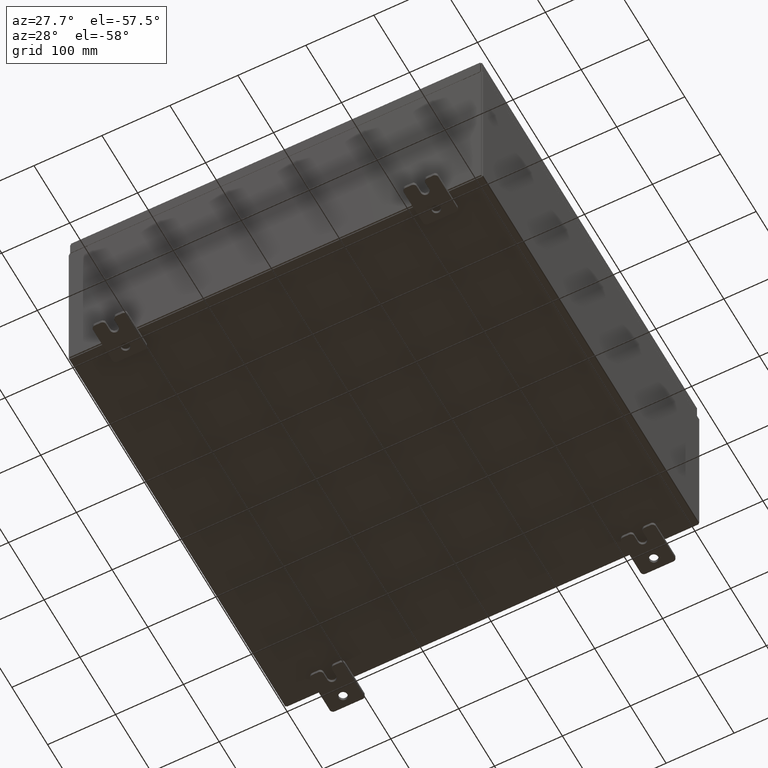
[diagram: clean part render]
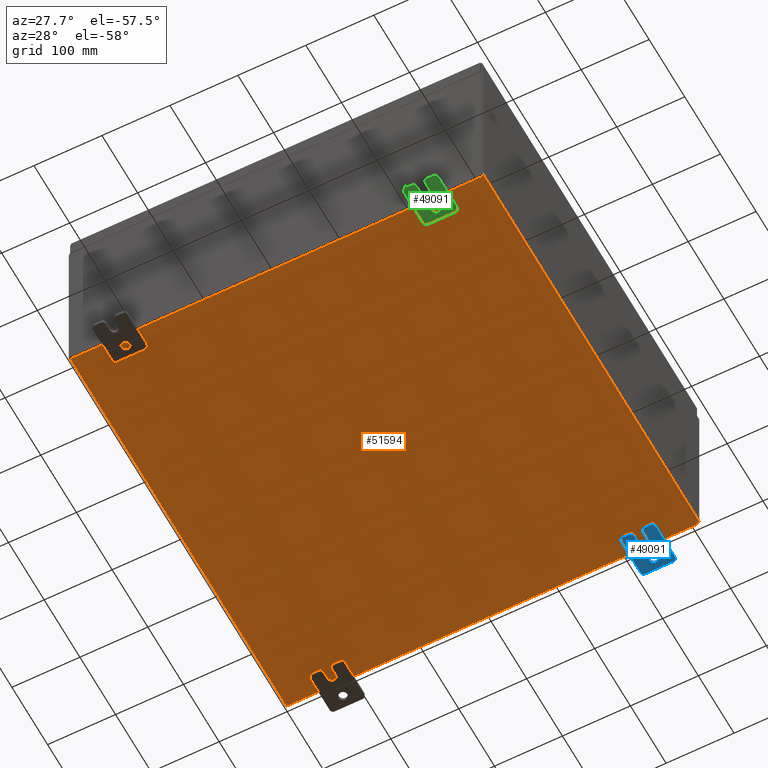
[diagram: same view with three faces highlighted in distinct colors, each labeled with its STEP entity id]
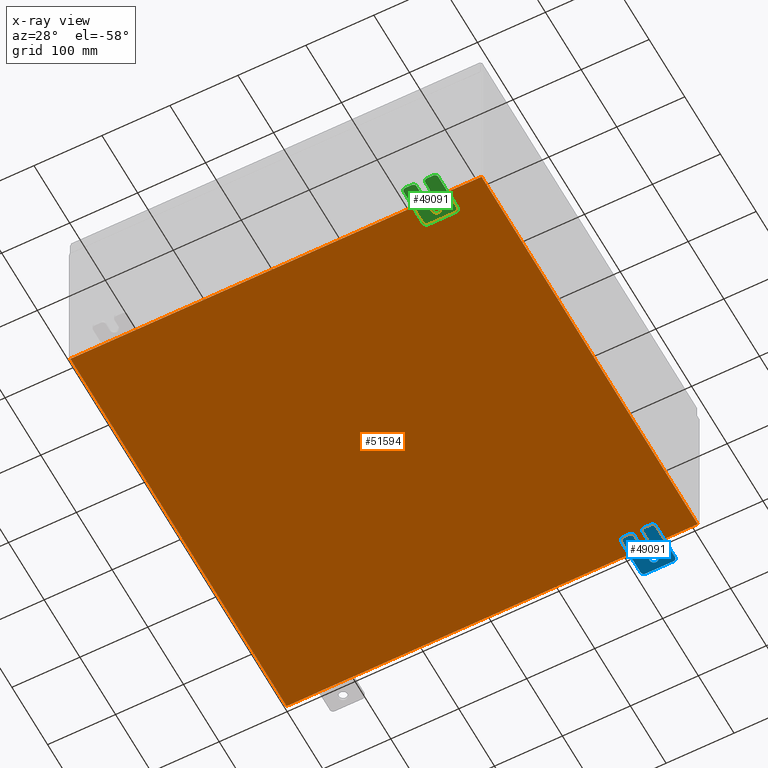
[diagram: x-ray of the same camera — body ghosted, the three highlighted faces saturated]
A machine part, auxiliary view with three faces highlighted in distinct colors.
The next image is the same camera in x-ray (body ghosted, the three faces saturated) — at least one of them is partly hidden behind the body in this view.
Their STEP definitions:

[orange] entity #51594 — the highlighted planar face has unit normal (0, 0, -1).
#5062 = VERTEX_POINT ( 'NONE', #60723 ) ;
#8663 = ORIENTED_EDGE ( 'NONE', *, *, #30995, .T. ) ;
#12302 = LINE ( 'NONE', #56948, #36972 ) ;
#16955 = VERTEX_POINT ( 'NONE', #51321 ) ;
#18797 = DIRECTION ( 'NONE',  ( -0.0000000000000000000, -1.000000000000000000, -0.0000000000000000000 ) ) ;
#19096 = DIRECTION ( 'NONE',  ( -1.000000000000000000, 0.0000000000000000000, -0.0000000000000000000 ) ) ;
#22297 = ORIENTED_EDGE ( 'NONE', *, *, #25123, .T. ) ;
#22399 = DIRECTION ( 'NONE',  ( -0.0000000000000000000, 1.000000000000000000, -0.0000000000000000000 ) ) ;
#22696 = LINE ( 'NONE', #38189, #60264 ) ;
#25077 = EDGE_CURVE ( 'NONE', #27256, #35909, #37359, .T. ) ;
#25123 = EDGE_CURVE ( 'NONE', #5062, #35909, #22696, .T. ) ;
#27256 = VERTEX_POINT ( 'NONE', #43147 ) ;
#27487 = CARTESIAN_POINT ( 'NONE',  ( -12.00000000000000400, 11.92529999999999800, -0.07470000000000000300 ) ) ;
#30995 = EDGE_CURVE ( 'NONE', #27256, #16955, #12302, .T. ) ;
#33928 = LINE ( 'NONE', #27487, #61469 ) ;
#35909 = VERTEX_POINT ( 'NONE', #49508 ) ;
#36972 = VECTOR ( 'NONE', #22399, 39.37007874015748100 ) ;
#37359 = LINE ( 'NONE', #52751, #61770 ) ;
#38189 = CARTESIAN_POINT ( 'NONE',  ( 11.91229999999999800, 11.92529999999999800, -0.07469999999999994700 ) ) ;
#39957 = FACE_OUTER_BOUND ( 'NONE', #63251, .T. ) ;
#42646 = ORIENTED_EDGE ( 'NONE', *, *, #48785, .F. ) ;
#43147 = CARTESIAN_POINT ( 'NONE',  ( -11.91230000000000400, -11.92530000000000000, -0.07469999999999994700 ) ) ;
#43627 = PLANE ( 'NONE',  #61306 ) ;
#46796 = DIRECTION ( 'NONE',  ( -1.000000000000000000, -0.0000000000000000000, -0.0000000000000000000 ) ) ;
#48323 = CARTESIAN_POINT ( 'NONE',  ( 0.0000000000000000000, 0.0000000000000000000, -0.07470000000000000300 ) ) ;
#48546 = DIRECTION ( 'NONE',  ( 0.0000000000000000000, 0.0000000000000000000, -1.000000000000000000 ) ) ;
#48785 = EDGE_CURVE ( 'NONE', #5062, #16955, #33928, .T. ) ;
#49508 = CARTESIAN_POINT ( 'NONE',  ( 11.91229999999998900, -11.92530000000000400, -0.07470000000000000300 ) ) ;
#51321 = CARTESIAN_POINT ( 'NONE',  ( -11.91230000000000400, 11.92529999999999800, -0.07470000000000000300 ) ) ;
#51594 = ADVANCED_FACE ( 'NONE', ( #39957 ), #43627, .T. ) ;
#52635 = ORIENTED_EDGE ( 'NONE', *, *, #25077, .F. ) ;
#52751 = CARTESIAN_POINT ( 'NONE',  ( -12.00000000000000400, -11.92530000000000400, -0.07470000000000000300 ) ) ;
#56948 = CARTESIAN_POINT ( 'NONE',  ( -11.91230000000000400, -11.92530000000000400, -0.07469999999999994700 ) ) ;
#60264 = VECTOR ( 'NONE', #18797, 39.37007874015748100 ) ;
#60723 = CARTESIAN_POINT ( 'NONE',  ( 11.91229999999999800, 11.92529999999999600, -0.07469999999999994700 ) ) ;
#61306 = AXIS2_PLACEMENT_3D ( 'NONE', #48323, #48546, #19096 ) ;
#61469 = VECTOR ( 'NONE', #46796, 39.37007874015748100 ) ;
#61770 = VECTOR ( 'NONE', #62502, 39.37007874015748100 ) ;
#62502 = DIRECTION ( 'NONE',  ( 1.000000000000000000, 0.0000000000000000000, 0.0000000000000000000 ) ) ;
#63251 = EDGE_LOOP ( 'NONE', ( #52635, #8663, #42646, #22297 ) ) ;

[blue] entity #49091 — the highlighted planar face has unit normal (0, 0, 1).
#152 = VERTEX_POINT ( 'NONE', #59435 ) ;
#384 = DIRECTION ( 'NONE',  ( 0.0000000000000000000, 1.639108796198553600E-015, 1.000000000000000000 ) ) ;
#1440 = VECTOR ( 'NONE', #384, 39.37007874015748100 ) ;
#2532 = CIRCLE ( 'NONE', #15105, 0.2499999999999999200 ) ;
#3600 = CARTESIAN_POINT ( 'NONE',  ( -0.1880000000000005800, -1.250000000000003800, 0.2500000000000005000 ) ) ;
#4253 = EDGE_CURVE ( 'NONE', #48359, #30525, #16136, .T. ) ;
#5102 = CARTESIAN_POINT ( 'NONE',  ( -0.1879999999999997800, 1.249999999999994200, -1.000000000000010400 ) ) ;
#5118 = EDGE_CURVE ( 'NONE', #57899, #58366, #43829, .T. ) ;
#5237 = CARTESIAN_POINT ( 'NONE',  ( -0.1880000000000004700, -1.060000000000003400, -0.2499999999999994400 ) ) ;
#5253 = ORIENTED_EDGE ( 'NONE', *, *, #4253, .T. ) ;
#5473 = CARTESIAN_POINT ( 'NONE',  ( -0.1880000000000010000, 0.6249999999999992200, -0.2499999999999999200 ) ) ;
#5870 = AXIS2_PLACEMENT_3D ( 'NONE', #16741, #51151, #21715 ) ;
#5991 = LINE ( 'NONE', #43253, #56695 ) ;
#6138 = CARTESIAN_POINT ( 'NONE',  ( -0.1879999999999997800, 1.249999999999997300, 0.8099999999999935000 ) ) ;
#6157 = EDGE_CURVE ( 'NONE', #25726, #58366, #27631, .T. ) ;
#6261 = CARTESIAN_POINT ( 'NONE',  ( -0.1880000000000001900, -0.6249999999999992200, 6.829619984160658000E-017 ) ) ;
#6622 = CARTESIAN_POINT ( 'NONE',  ( -0.1879999999999997800, -1.060000000000001200, 0.9999999999999988900 ) ) ;
#6968 = CIRCLE ( 'NONE', #5870, 0.1900000000000011100 ) ;
#7041 = CARTESIAN_POINT ( 'NONE',  ( -0.1879999999999997800, -1.060000000000003400, -0.4400000000000005000 ) ) ;
#7085 = CARTESIAN_POINT ( 'NONE',  ( -0.1879999999999997800, -1.250000000000004700, -0.4400000000000002200 ) ) ;
#7314 = DIRECTION ( 'NONE',  ( -1.000000000000000000, -0.0000000000000000000, 0.0000000000000000000 ) ) ;
#7676 = DIRECTION ( 'NONE',  ( -1.000000000000000000, -0.0000000000000000000, 0.0000000000000000000 ) ) ;
#7889 = DIRECTION ( 'NONE',  ( 0.0000000000000000000, 0.0000000000000000000, -1.000000000000000000 ) ) ;
#8784 = LINE ( 'NONE', #12576, #31904 ) ;
#9307 = EDGE_CURVE ( 'NONE', #43736, #10852, #39450, .T. ) ;
#10829 = DIRECTION ( 'NONE',  ( 1.000000000000000000, 0.0000000000000000000, -0.0000000000000000000 ) ) ;
#10852 = VERTEX_POINT ( 'NONE', #60986 ) ;
#11184 = DIRECTION ( 'NONE',  ( -6.829619984160660000E-016, -1.000000000000000000, 0.0000000000000000000 ) ) ;
#11342 = ORIENTED_EDGE ( 'NONE', *, *, #5118, .T. ) ;
#11440 = EDGE_CURVE ( 'NONE', #61713, #58808, #34676, .T. ) ;
#11552 = EDGE_CURVE ( 'NONE', #39666, #35731, #6968, .T. ) ;
#11951 = DIRECTION ( 'NONE',  ( 1.000000000000000000, -0.0000000000000000000, -5.163192708025532000E-017 ) ) ;
#12064 = ORIENTED_EDGE ( 'NONE', *, *, #6157, .F. ) ;
#12320 = CARTESIAN_POINT ( 'NONE',  ( -0.1879999999999997800, -1.060000000000001600, 0.8099999999999978300 ) ) ;
#12576 = CARTESIAN_POINT ( 'NONE',  ( -0.1880000000000001900, -0.6249999999999992200, -0.2499999999999993900 ) ) ;
#13351 = VECTOR ( 'NONE', #24859, 39.37007874015748100 ) ;
#13676 = DIRECTION ( 'NONE',  ( 0.0000000000000000000, 0.0000000000000000000, -1.000000000000000000 ) ) ;
#13958 = DIRECTION ( 'NONE',  ( 0.0000000000000000000, 1.000000000000000000, -1.639108796198558100E-015 ) ) ;
#14457 = CARTESIAN_POINT ( 'NONE',  ( -0.1880000000000010000, 0.6249999999999992200, -7.703811342100550500E-020 ) ) ;
#15105 = AXIS2_PLACEMENT_3D ( 'NONE', #41448, #11951, #46381 ) ;
#16136 = CIRCLE ( 'NONE', #27086, 0.1900000000000011100 ) ;
#16342 = DIRECTION ( 'NONE',  ( -1.000000000000000000, -0.0000000000000000000, 0.0000000000000000000 ) ) ;
#16741 = CARTESIAN_POINT ( 'NONE',  ( -0.1879999999999997800, -1.060000000000004100, -0.8100000000000050500 ) ) ;
#17274 = DIRECTION ( 'NONE',  ( 0.0000000000000000000, 7.189073667537492800E-016, -1.000000000000000000 ) ) ;
#18520 = VERTEX_POINT ( 'NONE', #54547 ) ;
#19435 = DIRECTION ( 'NONE',  ( 0.0000000000000000000, 0.0000000000000000000, -1.000000000000000000 ) ) ;
#19465 = DIRECTION ( 'NONE',  ( 0.0000000000000000000, -1.639108796198553600E-015, -1.000000000000000000 ) ) ;
#21029 = AXIS2_PLACEMENT_3D ( 'NONE', #14457, #48884, #19435 ) ;
#21260 = EDGE_CURVE ( 'NONE', #58808, #30525, #8784, .T. ) ;
#21688 = EDGE_CURVE ( 'NONE', #18520, #45068, #39884, .T. ) ;
#21715 = DIRECTION ( 'NONE',  ( 0.0000000000000000000, 0.0000000000000000000, -1.000000000000000000 ) ) ;
#21858 = ORIENTED_EDGE ( 'NONE', *, *, #50839, .F. ) ;
#23044 = AXIS2_PLACEMENT_3D ( 'NONE', #45842, #16342, #50747 ) ;
#23137 = FACE_BOUND ( 'NONE', #36793, .T. ) ;
#24070 = LINE ( 'NONE', #3600, #50212 ) ;
#24629 = AXIS2_PLACEMENT_3D ( 'NONE', #33711, #62214, #13676 ) ;
#24859 = DIRECTION ( 'NONE',  ( 0.0000000000000000000, -1.000000000000000000, 1.639108796198558100E-015 ) ) ;
#25072 = CARTESIAN_POINT ( 'NONE',  ( -0.1879999999999997800, 1.249999999999997600, 0.9999999999999951200 ) ) ;
#25724 = ORIENTED_EDGE ( 'NONE', *, *, #21688, .F. ) ;
#25726 = VERTEX_POINT ( 'NONE', #37396 ) ;
#26876 = AXIS2_PLACEMENT_3D ( 'NONE', #6261, #40688, #11184 ) ;
#27086 = AXIS2_PLACEMENT_3D ( 'NONE', #7041, #7676, #7889 ) ;
#27631 = LINE ( 'NONE', #5102, #1440 ) ;
#27693 = ORIENTED_EDGE ( 'NONE', *, *, #61830, .T. ) ;
#28143 = EDGE_CURVE ( 'NONE', #152, #61713, #24070, .T. ) ;
#28914 = EDGE_LOOP ( 'NONE', ( #25724, #31396, #62767, #11342, #12064, #27693, #63541, #54881, #21858, #5253, #39610, #48835, #31173, #44270 ) ) ;
#30525 = VERTEX_POINT ( 'NONE', #5237 ) ;
#30716 = CIRCLE ( 'NONE', #61769, 0.1900000000000011100 ) ;
#31173 = ORIENTED_EDGE ( 'NONE', *, *, #28143, .F. ) ;
#31396 = ORIENTED_EDGE ( 'NONE', *, *, #53554, .T. ) ;
#31904 = VECTOR ( 'NONE', #46990, 39.37007874015748100 ) ;
#32398 = CARTESIAN_POINT ( 'NONE',  ( -0.1879999999999997800, 1.059999999999993400, -1.000000000000010000 ) ) ;
#33711 = CARTESIAN_POINT ( 'NONE',  ( -0.1879999999999997800, 1.059999999999996300, 0.8099999999999938400 ) ) ;
#33815 = VECTOR ( 'NONE', #19465, 39.37007874015748100 ) ;
#34086 = CARTESIAN_POINT ( 'NONE',  ( -0.1879999999999997800, -1.250000000000002200, 0.9999999999999992200 ) ) ;
#34676 = CIRCLE ( 'NONE', #26876, 0.2499999999999999200 ) ;
#34707 = CARTESIAN_POINT ( 'NONE',  ( -0.1879999999999997800, -1.250000000000002200, 0.9999999999999992200 ) ) ;
#35042 = CARTESIAN_POINT ( 'NONE',  ( -0.1880000000000001900, -0.6249999999999992200, 0.2500000000000005000 ) ) ;
#35570 = CIRCLE ( 'NONE', #55576, 0.1900000000000011100 ) ;
#35731 = VERTEX_POINT ( 'NONE', #48218 ) ;
#35865 = AXIS2_PLACEMENT_3D ( 'NONE', #54865, #10829, #45265 ) ;
#36225 = FACE_OUTER_BOUND ( 'NONE', #28914, .T. ) ;
#36301 = CARTESIAN_POINT ( 'NONE',  ( -0.1879999999999997800, -1.250000000000003100, 0.4400000000000020000 ) ) ;
#36463 = LINE ( 'NONE', #25072, #13351 ) ;
#36779 = CARTESIAN_POINT ( 'NONE',  ( -0.1879999999999997800, 1.059999999999993600, -0.8100000000000089400 ) ) ;
#36793 = EDGE_LOOP ( 'NONE', ( #60186, #54070 ) ) ;
#37396 = CARTESIAN_POINT ( 'NONE',  ( -0.1879999999999997800, 1.249999999999994700, -0.8100000000000092700 ) ) ;
#39231 = CARTESIAN_POINT ( 'NONE',  ( -0.1880000000000001900, -0.6249999999999992200, -0.2499999999999998600 ) ) ;
#39450 = CIRCLE ( 'NONE', #21029, 0.2499999999999999200 ) ;
#39610 = ORIENTED_EDGE ( 'NONE', *, *, #21260, .F. ) ;
#39666 = VERTEX_POINT ( 'NONE', #57698 ) ;
#39884 = LINE ( 'NONE', #34707, #62737 ) ;
#40348 = PLANE ( 'NONE',  #35865 ) ;
#40688 = DIRECTION ( 'NONE',  ( -1.000000000000000000, 6.523827964459549700E-016, 5.163192708025532000E-017 ) ) ;
#41448 = CARTESIAN_POINT ( 'NONE',  ( -0.1880000000000010000, 0.6249999999999992200, -7.703811342100550500E-020 ) ) ;
#41487 = CARTESIAN_POINT ( 'NONE',  ( -0.1879999999999997800, 1.059999999999996500, 0.9999999999999953400 ) ) ;
#41731 = DIRECTION ( 'NONE',  ( 0.0000000000000000000, 0.0000000000000000000, -1.000000000000000000 ) ) ;
#41805 = CIRCLE ( 'NONE', #23044, 0.1900000000000011400 ) ;
#43253 = CARTESIAN_POINT ( 'NONE',  ( -0.1879999999999997800, -1.250000000000005600, -1.000000000000006200 ) ) ;
#43721 = EDGE_CURVE ( 'NONE', #57899, #48718, #36463, .T. ) ;
#43736 = VERTEX_POINT ( 'NONE', #5473 ) ;
#43829 = CIRCLE ( 'NONE', #24629, 0.1900000000000011100 ) ;
#44270 = ORIENTED_EDGE ( 'NONE', *, *, #60601, .T. ) ;
#45068 = VERTEX_POINT ( 'NONE', #36301 ) ;
#45071 = EDGE_CURVE ( 'NONE', #10852, #43736, #2532, .T. ) ;
#45265 = DIRECTION ( 'NONE',  ( -0.0000000000000000000, 0.0000000000000000000, -1.000000000000000000 ) ) ;
#45842 = CARTESIAN_POINT ( 'NONE',  ( -0.1879999999999997800, -1.060000000000002100, 0.4400000000000016700 ) ) ;
#46381 = DIRECTION ( 'NONE',  ( 0.0000000000000000000, 0.0000000000000000000, -1.000000000000000000 ) ) ;
#46743 = DIRECTION ( 'NONE',  ( -1.000000000000000000, -0.0000000000000000000, 0.0000000000000000000 ) ) ;
#46990 = DIRECTION ( 'NONE',  ( -6.556435184794182400E-016, -1.000000000000000000, -1.639108796198545600E-016 ) ) ;
#47422 = VERTEX_POINT ( 'NONE', #32398 ) ;
#48218 = CARTESIAN_POINT ( 'NONE',  ( -0.1879999999999997800, -1.250000000000005300, -0.8100000000000047200 ) ) ;
#48359 = VERTEX_POINT ( 'NONE', #7085 ) ;
#48718 = VERTEX_POINT ( 'NONE', #6622 ) ;
#48835 = ORIENTED_EDGE ( 'NONE', *, *, #11440, .F. ) ;
#48884 = DIRECTION ( 'NONE',  ( 1.000000000000000000, -0.0000000000000000000, -5.163192708025532000E-017 ) ) ;
#49091 = ADVANCED_FACE ( 'NONE', ( #23137, #36225 ), #40348, .F. ) ;
#50212 = VECTOR ( 'NONE', #62331, 39.37007874015748100 ) ;
#50747 = DIRECTION ( 'NONE',  ( 0.0000000000000000000, 0.0000000000000000000, -1.000000000000000000 ) ) ;
#50839 = EDGE_CURVE ( 'NONE', #48359, #35731, #59860, .T. ) ;
#51151 = DIRECTION ( 'NONE',  ( -1.000000000000000000, -0.0000000000000000000, 0.0000000000000000000 ) ) ;
#53094 = EDGE_CURVE ( 'NONE', #39666, #47422, #5991, .T. ) ;
#53554 = EDGE_CURVE ( 'NONE', #18520, #48718, #30716, .T. ) ;
#54070 = ORIENTED_EDGE ( 'NONE', *, *, #45071, .T. ) ;
#54216 = DIRECTION ( 'NONE',  ( 0.0000000000000000000, -1.639108796198553600E-015, -1.000000000000000000 ) ) ;
#54547 = CARTESIAN_POINT ( 'NONE',  ( -0.1879999999999997800, -1.250000000000002400, 0.8099999999999980500 ) ) ;
#54865 = CARTESIAN_POINT ( 'NONE',  ( -0.1879999999999997800, 0.0000000000000000000, 0.0000000000000000000 ) ) ;
#54881 = ORIENTED_EDGE ( 'NONE', *, *, #11552, .T. ) ;
#55576 = AXIS2_PLACEMENT_3D ( 'NONE', #36779, #7314, #41731 ) ;
#56695 = VECTOR ( 'NONE', #13958, 39.37007874015748100 ) ;
#57698 = CARTESIAN_POINT ( 'NONE',  ( -0.1879999999999997800, -1.060000000000004500, -1.000000000000006400 ) ) ;
#57899 = VERTEX_POINT ( 'NONE', #41487 ) ;
#58366 = VERTEX_POINT ( 'NONE', #6138 ) ;
#58808 = VERTEX_POINT ( 'NONE', #39231 ) ;
#59435 = CARTESIAN_POINT ( 'NONE',  ( -0.1880000000000004700, -1.060000000000002100, 0.2500000000000005000 ) ) ;
#59860 = LINE ( 'NONE', #34086, #33815 ) ;
#60186 = ORIENTED_EDGE ( 'NONE', *, *, #9307, .T. ) ;
#60601 = EDGE_CURVE ( 'NONE', #152, #45068, #41805, .T. ) ;
#60986 = CARTESIAN_POINT ( 'NONE',  ( -0.1880000000000010000, 0.6249999999999992200, 0.2499999999999999200 ) ) ;
#61713 = VERTEX_POINT ( 'NONE', #35042 ) ;
#61769 = AXIS2_PLACEMENT_3D ( 'NONE', #12320, #46743, #17274 ) ;
#61830 = EDGE_CURVE ( 'NONE', #25726, #47422, #35570, .T. ) ;
#62214 = DIRECTION ( 'NONE',  ( -1.000000000000000000, -0.0000000000000000000, 0.0000000000000000000 ) ) ;
#62331 = DIRECTION ( 'NONE',  ( 6.556435184794182400E-016, 1.000000000000000000, 0.0000000000000000000 ) ) ;
#62737 = VECTOR ( 'NONE', #54216, 39.37007874015748100 ) ;
#62767 = ORIENTED_EDGE ( 'NONE', *, *, #43721, .F. ) ;
#63541 = ORIENTED_EDGE ( 'NONE', *, *, #53094, .F. ) ;

[green] entity #49091 — the highlighted planar face has unit normal (0, 0, 1).
#152 = VERTEX_POINT ( 'NONE', #59435 ) ;
#384 = DIRECTION ( 'NONE',  ( 0.0000000000000000000, 1.639108796198553600E-015, 1.000000000000000000 ) ) ;
#1440 = VECTOR ( 'NONE', #384, 39.37007874015748100 ) ;
#2532 = CIRCLE ( 'NONE', #15105, 0.2499999999999999200 ) ;
#3600 = CARTESIAN_POINT ( 'NONE',  ( -0.1880000000000005800, -1.250000000000003800, 0.2500000000000005000 ) ) ;
#4253 = EDGE_CURVE ( 'NONE', #48359, #30525, #16136, .T. ) ;
#5102 = CARTESIAN_POINT ( 'NONE',  ( -0.1879999999999997800, 1.249999999999994200, -1.000000000000010400 ) ) ;
#5118 = EDGE_CURVE ( 'NONE', #57899, #58366, #43829, .T. ) ;
#5237 = CARTESIAN_POINT ( 'NONE',  ( -0.1880000000000004700, -1.060000000000003400, -0.2499999999999994400 ) ) ;
#5253 = ORIENTED_EDGE ( 'NONE', *, *, #4253, .T. ) ;
#5473 = CARTESIAN_POINT ( 'NONE',  ( -0.1880000000000010000, 0.6249999999999992200, -0.2499999999999999200 ) ) ;
#5870 = AXIS2_PLACEMENT_3D ( 'NONE', #16741, #51151, #21715 ) ;
#5991 = LINE ( 'NONE', #43253, #56695 ) ;
#6138 = CARTESIAN_POINT ( 'NONE',  ( -0.1879999999999997800, 1.249999999999997300, 0.8099999999999935000 ) ) ;
#6157 = EDGE_CURVE ( 'NONE', #25726, #58366, #27631, .T. ) ;
#6261 = CARTESIAN_POINT ( 'NONE',  ( -0.1880000000000001900, -0.6249999999999992200, 6.829619984160658000E-017 ) ) ;
#6622 = CARTESIAN_POINT ( 'NONE',  ( -0.1879999999999997800, -1.060000000000001200, 0.9999999999999988900 ) ) ;
#6968 = CIRCLE ( 'NONE', #5870, 0.1900000000000011100 ) ;
#7041 = CARTESIAN_POINT ( 'NONE',  ( -0.1879999999999997800, -1.060000000000003400, -0.4400000000000005000 ) ) ;
#7085 = CARTESIAN_POINT ( 'NONE',  ( -0.1879999999999997800, -1.250000000000004700, -0.4400000000000002200 ) ) ;
#7314 = DIRECTION ( 'NONE',  ( -1.000000000000000000, -0.0000000000000000000, 0.0000000000000000000 ) ) ;
#7676 = DIRECTION ( 'NONE',  ( -1.000000000000000000, -0.0000000000000000000, 0.0000000000000000000 ) ) ;
#7889 = DIRECTION ( 'NONE',  ( 0.0000000000000000000, 0.0000000000000000000, -1.000000000000000000 ) ) ;
#8784 = LINE ( 'NONE', #12576, #31904 ) ;
#9307 = EDGE_CURVE ( 'NONE', #43736, #10852, #39450, .T. ) ;
#10829 = DIRECTION ( 'NONE',  ( 1.000000000000000000, 0.0000000000000000000, -0.0000000000000000000 ) ) ;
#10852 = VERTEX_POINT ( 'NONE', #60986 ) ;
#11184 = DIRECTION ( 'NONE',  ( -6.829619984160660000E-016, -1.000000000000000000, 0.0000000000000000000 ) ) ;
#11342 = ORIENTED_EDGE ( 'NONE', *, *, #5118, .T. ) ;
#11440 = EDGE_CURVE ( 'NONE', #61713, #58808, #34676, .T. ) ;
#11552 = EDGE_CURVE ( 'NONE', #39666, #35731, #6968, .T. ) ;
#11951 = DIRECTION ( 'NONE',  ( 1.000000000000000000, -0.0000000000000000000, -5.163192708025532000E-017 ) ) ;
#12064 = ORIENTED_EDGE ( 'NONE', *, *, #6157, .F. ) ;
#12320 = CARTESIAN_POINT ( 'NONE',  ( -0.1879999999999997800, -1.060000000000001600, 0.8099999999999978300 ) ) ;
#12576 = CARTESIAN_POINT ( 'NONE',  ( -0.1880000000000001900, -0.6249999999999992200, -0.2499999999999993900 ) ) ;
#13351 = VECTOR ( 'NONE', #24859, 39.37007874015748100 ) ;
#13676 = DIRECTION ( 'NONE',  ( 0.0000000000000000000, 0.0000000000000000000, -1.000000000000000000 ) ) ;
#13958 = DIRECTION ( 'NONE',  ( 0.0000000000000000000, 1.000000000000000000, -1.639108796198558100E-015 ) ) ;
#14457 = CARTESIAN_POINT ( 'NONE',  ( -0.1880000000000010000, 0.6249999999999992200, -7.703811342100550500E-020 ) ) ;
#15105 = AXIS2_PLACEMENT_3D ( 'NONE', #41448, #11951, #46381 ) ;
#16136 = CIRCLE ( 'NONE', #27086, 0.1900000000000011100 ) ;
#16342 = DIRECTION ( 'NONE',  ( -1.000000000000000000, -0.0000000000000000000, 0.0000000000000000000 ) ) ;
#16741 = CARTESIAN_POINT ( 'NONE',  ( -0.1879999999999997800, -1.060000000000004100, -0.8100000000000050500 ) ) ;
#17274 = DIRECTION ( 'NONE',  ( 0.0000000000000000000, 7.189073667537492800E-016, -1.000000000000000000 ) ) ;
#18520 = VERTEX_POINT ( 'NONE', #54547 ) ;
#19435 = DIRECTION ( 'NONE',  ( 0.0000000000000000000, 0.0000000000000000000, -1.000000000000000000 ) ) ;
#19465 = DIRECTION ( 'NONE',  ( 0.0000000000000000000, -1.639108796198553600E-015, -1.000000000000000000 ) ) ;
#21029 = AXIS2_PLACEMENT_3D ( 'NONE', #14457, #48884, #19435 ) ;
#21260 = EDGE_CURVE ( 'NONE', #58808, #30525, #8784, .T. ) ;
#21688 = EDGE_CURVE ( 'NONE', #18520, #45068, #39884, .T. ) ;
#21715 = DIRECTION ( 'NONE',  ( 0.0000000000000000000, 0.0000000000000000000, -1.000000000000000000 ) ) ;
#21858 = ORIENTED_EDGE ( 'NONE', *, *, #50839, .F. ) ;
#23044 = AXIS2_PLACEMENT_3D ( 'NONE', #45842, #16342, #50747 ) ;
#23137 = FACE_BOUND ( 'NONE', #36793, .T. ) ;
#24070 = LINE ( 'NONE', #3600, #50212 ) ;
#24629 = AXIS2_PLACEMENT_3D ( 'NONE', #33711, #62214, #13676 ) ;
#24859 = DIRECTION ( 'NONE',  ( 0.0000000000000000000, -1.000000000000000000, 1.639108796198558100E-015 ) ) ;
#25072 = CARTESIAN_POINT ( 'NONE',  ( -0.1879999999999997800, 1.249999999999997600, 0.9999999999999951200 ) ) ;
#25724 = ORIENTED_EDGE ( 'NONE', *, *, #21688, .F. ) ;
#25726 = VERTEX_POINT ( 'NONE', #37396 ) ;
#26876 = AXIS2_PLACEMENT_3D ( 'NONE', #6261, #40688, #11184 ) ;
#27086 = AXIS2_PLACEMENT_3D ( 'NONE', #7041, #7676, #7889 ) ;
#27631 = LINE ( 'NONE', #5102, #1440 ) ;
#27693 = ORIENTED_EDGE ( 'NONE', *, *, #61830, .T. ) ;
#28143 = EDGE_CURVE ( 'NONE', #152, #61713, #24070, .T. ) ;
#28914 = EDGE_LOOP ( 'NONE', ( #25724, #31396, #62767, #11342, #12064, #27693, #63541, #54881, #21858, #5253, #39610, #48835, #31173, #44270 ) ) ;
#30525 = VERTEX_POINT ( 'NONE', #5237 ) ;
#30716 = CIRCLE ( 'NONE', #61769, 0.1900000000000011100 ) ;
#31173 = ORIENTED_EDGE ( 'NONE', *, *, #28143, .F. ) ;
#31396 = ORIENTED_EDGE ( 'NONE', *, *, #53554, .T. ) ;
#31904 = VECTOR ( 'NONE', #46990, 39.37007874015748100 ) ;
#32398 = CARTESIAN_POINT ( 'NONE',  ( -0.1879999999999997800, 1.059999999999993400, -1.000000000000010000 ) ) ;
#33711 = CARTESIAN_POINT ( 'NONE',  ( -0.1879999999999997800, 1.059999999999996300, 0.8099999999999938400 ) ) ;
#33815 = VECTOR ( 'NONE', #19465, 39.37007874015748100 ) ;
#34086 = CARTESIAN_POINT ( 'NONE',  ( -0.1879999999999997800, -1.250000000000002200, 0.9999999999999992200 ) ) ;
#34676 = CIRCLE ( 'NONE', #26876, 0.2499999999999999200 ) ;
#34707 = CARTESIAN_POINT ( 'NONE',  ( -0.1879999999999997800, -1.250000000000002200, 0.9999999999999992200 ) ) ;
#35042 = CARTESIAN_POINT ( 'NONE',  ( -0.1880000000000001900, -0.6249999999999992200, 0.2500000000000005000 ) ) ;
#35570 = CIRCLE ( 'NONE', #55576, 0.1900000000000011100 ) ;
#35731 = VERTEX_POINT ( 'NONE', #48218 ) ;
#35865 = AXIS2_PLACEMENT_3D ( 'NONE', #54865, #10829, #45265 ) ;
#36225 = FACE_OUTER_BOUND ( 'NONE', #28914, .T. ) ;
#36301 = CARTESIAN_POINT ( 'NONE',  ( -0.1879999999999997800, -1.250000000000003100, 0.4400000000000020000 ) ) ;
#36463 = LINE ( 'NONE', #25072, #13351 ) ;
#36779 = CARTESIAN_POINT ( 'NONE',  ( -0.1879999999999997800, 1.059999999999993600, -0.8100000000000089400 ) ) ;
#36793 = EDGE_LOOP ( 'NONE', ( #60186, #54070 ) ) ;
#37396 = CARTESIAN_POINT ( 'NONE',  ( -0.1879999999999997800, 1.249999999999994700, -0.8100000000000092700 ) ) ;
#39231 = CARTESIAN_POINT ( 'NONE',  ( -0.1880000000000001900, -0.6249999999999992200, -0.2499999999999998600 ) ) ;
#39450 = CIRCLE ( 'NONE', #21029, 0.2499999999999999200 ) ;
#39610 = ORIENTED_EDGE ( 'NONE', *, *, #21260, .F. ) ;
#39666 = VERTEX_POINT ( 'NONE', #57698 ) ;
#39884 = LINE ( 'NONE', #34707, #62737 ) ;
#40348 = PLANE ( 'NONE',  #35865 ) ;
#40688 = DIRECTION ( 'NONE',  ( -1.000000000000000000, 6.523827964459549700E-016, 5.163192708025532000E-017 ) ) ;
#41448 = CARTESIAN_POINT ( 'NONE',  ( -0.1880000000000010000, 0.6249999999999992200, -7.703811342100550500E-020 ) ) ;
#41487 = CARTESIAN_POINT ( 'NONE',  ( -0.1879999999999997800, 1.059999999999996500, 0.9999999999999953400 ) ) ;
#41731 = DIRECTION ( 'NONE',  ( 0.0000000000000000000, 0.0000000000000000000, -1.000000000000000000 ) ) ;
#41805 = CIRCLE ( 'NONE', #23044, 0.1900000000000011400 ) ;
#43253 = CARTESIAN_POINT ( 'NONE',  ( -0.1879999999999997800, -1.250000000000005600, -1.000000000000006200 ) ) ;
#43721 = EDGE_CURVE ( 'NONE', #57899, #48718, #36463, .T. ) ;
#43736 = VERTEX_POINT ( 'NONE', #5473 ) ;
#43829 = CIRCLE ( 'NONE', #24629, 0.1900000000000011100 ) ;
#44270 = ORIENTED_EDGE ( 'NONE', *, *, #60601, .T. ) ;
#45068 = VERTEX_POINT ( 'NONE', #36301 ) ;
#45071 = EDGE_CURVE ( 'NONE', #10852, #43736, #2532, .T. ) ;
#45265 = DIRECTION ( 'NONE',  ( -0.0000000000000000000, 0.0000000000000000000, -1.000000000000000000 ) ) ;
#45842 = CARTESIAN_POINT ( 'NONE',  ( -0.1879999999999997800, -1.060000000000002100, 0.4400000000000016700 ) ) ;
#46381 = DIRECTION ( 'NONE',  ( 0.0000000000000000000, 0.0000000000000000000, -1.000000000000000000 ) ) ;
#46743 = DIRECTION ( 'NONE',  ( -1.000000000000000000, -0.0000000000000000000, 0.0000000000000000000 ) ) ;
#46990 = DIRECTION ( 'NONE',  ( -6.556435184794182400E-016, -1.000000000000000000, -1.639108796198545600E-016 ) ) ;
#47422 = VERTEX_POINT ( 'NONE', #32398 ) ;
#48218 = CARTESIAN_POINT ( 'NONE',  ( -0.1879999999999997800, -1.250000000000005300, -0.8100000000000047200 ) ) ;
#48359 = VERTEX_POINT ( 'NONE', #7085 ) ;
#48718 = VERTEX_POINT ( 'NONE', #6622 ) ;
#48835 = ORIENTED_EDGE ( 'NONE', *, *, #11440, .F. ) ;
#48884 = DIRECTION ( 'NONE',  ( 1.000000000000000000, -0.0000000000000000000, -5.163192708025532000E-017 ) ) ;
#49091 = ADVANCED_FACE ( 'NONE', ( #23137, #36225 ), #40348, .F. ) ;
#50212 = VECTOR ( 'NONE', #62331, 39.37007874015748100 ) ;
#50747 = DIRECTION ( 'NONE',  ( 0.0000000000000000000, 0.0000000000000000000, -1.000000000000000000 ) ) ;
#50839 = EDGE_CURVE ( 'NONE', #48359, #35731, #59860, .T. ) ;
#51151 = DIRECTION ( 'NONE',  ( -1.000000000000000000, -0.0000000000000000000, 0.0000000000000000000 ) ) ;
#53094 = EDGE_CURVE ( 'NONE', #39666, #47422, #5991, .T. ) ;
#53554 = EDGE_CURVE ( 'NONE', #18520, #48718, #30716, .T. ) ;
#54070 = ORIENTED_EDGE ( 'NONE', *, *, #45071, .T. ) ;
#54216 = DIRECTION ( 'NONE',  ( 0.0000000000000000000, -1.639108796198553600E-015, -1.000000000000000000 ) ) ;
#54547 = CARTESIAN_POINT ( 'NONE',  ( -0.1879999999999997800, -1.250000000000002400, 0.8099999999999980500 ) ) ;
#54865 = CARTESIAN_POINT ( 'NONE',  ( -0.1879999999999997800, 0.0000000000000000000, 0.0000000000000000000 ) ) ;
#54881 = ORIENTED_EDGE ( 'NONE', *, *, #11552, .T. ) ;
#55576 = AXIS2_PLACEMENT_3D ( 'NONE', #36779, #7314, #41731 ) ;
#56695 = VECTOR ( 'NONE', #13958, 39.37007874015748100 ) ;
#57698 = CARTESIAN_POINT ( 'NONE',  ( -0.1879999999999997800, -1.060000000000004500, -1.000000000000006400 ) ) ;
#57899 = VERTEX_POINT ( 'NONE', #41487 ) ;
#58366 = VERTEX_POINT ( 'NONE', #6138 ) ;
#58808 = VERTEX_POINT ( 'NONE', #39231 ) ;
#59435 = CARTESIAN_POINT ( 'NONE',  ( -0.1880000000000004700, -1.060000000000002100, 0.2500000000000005000 ) ) ;
#59860 = LINE ( 'NONE', #34086, #33815 ) ;
#60186 = ORIENTED_EDGE ( 'NONE', *, *, #9307, .T. ) ;
#60601 = EDGE_CURVE ( 'NONE', #152, #45068, #41805, .T. ) ;
#60986 = CARTESIAN_POINT ( 'NONE',  ( -0.1880000000000010000, 0.6249999999999992200, 0.2499999999999999200 ) ) ;
#61713 = VERTEX_POINT ( 'NONE', #35042 ) ;
#61769 = AXIS2_PLACEMENT_3D ( 'NONE', #12320, #46743, #17274 ) ;
#61830 = EDGE_CURVE ( 'NONE', #25726, #47422, #35570, .T. ) ;
#62214 = DIRECTION ( 'NONE',  ( -1.000000000000000000, -0.0000000000000000000, 0.0000000000000000000 ) ) ;
#62331 = DIRECTION ( 'NONE',  ( 6.556435184794182400E-016, 1.000000000000000000, 0.0000000000000000000 ) ) ;
#62737 = VECTOR ( 'NONE', #54216, 39.37007874015748100 ) ;
#62767 = ORIENTED_EDGE ( 'NONE', *, *, #43721, .F. ) ;
#63541 = ORIENTED_EDGE ( 'NONE', *, *, #53094, .F. ) ;